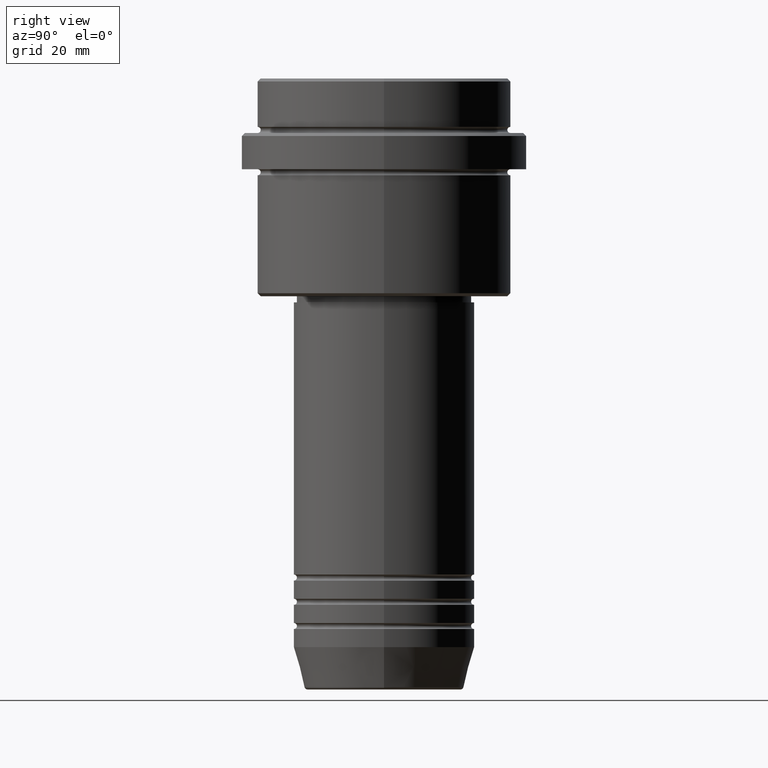
[diagram: clean part render]
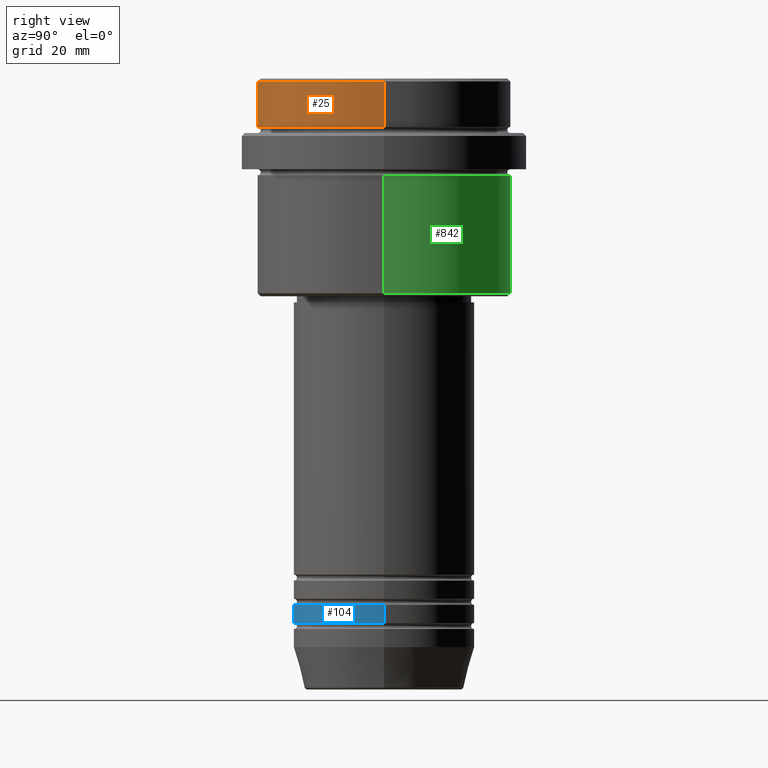
[diagram: same view with three faces highlighted in distinct colors, each labeled with its STEP entity id]
A machine part, right view with three faces highlighted in distinct colors.
Their STEP definitions:

[orange] entity #25 — the highlighted cylindrical surface (partial cylindrical patch) has radius 21 mm, axis along (-0, -0, 1).
#25 = ADVANCED_FACE ( 'NONE', ( #569 ), #991, .T. ) ;
#26 = CARTESIAN_POINT ( 'NONE',  ( 0.000000000000000000, 0.000000000000000000, 0.000000000000000000 ) ) ;
#95 = EDGE_CURVE ( 'NONE', #551, #1072, #917, .T. ) ;
#270 = DIRECTION ( 'NONE',  ( 1.000000000000000000, 0.000000000000000000, 0.000000000000000000 ) ) ;
#284 = LINE ( 'NONE', #712, #1170 ) ;
#298 = CARTESIAN_POINT ( 'NONE',  ( -21.00000000000000000, 2.571758278209441661E-15, -7.999999999999998224 ) ) ;
#355 = VERTEX_POINT ( 'NONE', #298 ) ;
#381 = CARTESIAN_POINT ( 'NONE',  ( 21.00000000000000000, 0.000000000000000000, 0.000000000000000000 ) ) ;
#387 = CARTESIAN_POINT ( 'NONE',  ( 21.00000000000000000, 0.000000000000000000, -0.5000000000000247580 ) ) ;
#399 = VERTEX_POINT ( 'NONE', #877 ) ;
#473 = DIRECTION ( 'NONE',  ( -0.000000000000000000, -0.000000000000000000, 1.000000000000000000 ) ) ;
#492 = DIRECTION ( 'NONE',  ( 0.000000000000000000, 0.000000000000000000, -1.000000000000000000 ) ) ;
#521 = AXIS2_PLACEMENT_3D ( 'NONE', #1125, #473, #998 ) ;
#532 = LINE ( 'NONE', #381, #1108 ) ;
#551 = VERTEX_POINT ( 'NONE', #387 ) ;
#567 = EDGE_CURVE ( 'NONE', #399, #551, #532, .T. ) ;
#569 = FACE_OUTER_BOUND ( 'NONE', #1161, .T. ) ;
#586 = ORIENTED_EDGE ( 'NONE', *, *, #699, .F. ) ;
#679 = DIRECTION ( 'NONE',  ( -0.000000000000000000, -0.000000000000000000, 1.000000000000000000 ) ) ;
#699 = EDGE_CURVE ( 'NONE', #355, #1072, #284, .T. ) ;
#702 = DIRECTION ( 'NONE',  ( 1.000000000000000000, 0.000000000000000000, 0.000000000000000000 ) ) ;
#712 = CARTESIAN_POINT ( 'NONE',  ( -21.00000000000000000, 2.571758278209441661E-15, 0.000000000000000000 ) ) ;
#731 = ORIENTED_EDGE ( 'NONE', *, *, #95, .T. ) ;
#745 = AXIS2_PLACEMENT_3D ( 'NONE', #26, #679, #702 ) ;
#747 = DIRECTION ( 'NONE',  ( -0.000000000000000000, -0.000000000000000000, 1.000000000000000000 ) ) ;
#791 = ORIENTED_EDGE ( 'NONE', *, *, #800, .T. ) ;
#800 = EDGE_CURVE ( 'NONE', #355, #399, #916, .T. ) ;
#869 = ORIENTED_EDGE ( 'NONE', *, *, #567, .T. ) ;
#877 = CARTESIAN_POINT ( 'NONE',  ( 21.00000000000000000, 0.000000000000000000, -7.999999999999998224 ) ) ;
#916 = CIRCLE ( 'NONE', #521, 21.00000000000000000 ) ;
#917 = CIRCLE ( 'NONE', #1110, 21.00000000000000000 ) ;
#991 = CYLINDRICAL_SURFACE ( 'NONE', #745, 21.00000000000000000 ) ;
#998 = DIRECTION ( 'NONE',  ( 1.000000000000000000, 0.000000000000000000, 0.000000000000000000 ) ) ;
#1072 = VERTEX_POINT ( 'NONE', #1127 ) ;
#1108 = VECTOR ( 'NONE', #1280, 1000.000000000000000 ) ;
#1110 = AXIS2_PLACEMENT_3D ( 'NONE', #1230, #492, #270 ) ;
#1125 = CARTESIAN_POINT ( 'NONE',  ( 0.000000000000000000, 0.000000000000000000, -7.999999999999998224 ) ) ;
#1127 = CARTESIAN_POINT ( 'NONE',  ( -21.00000000000000000, 2.571758278209441661E-15, -0.5000000000000247580 ) ) ;
#1161 = EDGE_LOOP ( 'NONE', ( #586, #791, #869, #731 ) ) ;
#1170 = VECTOR ( 'NONE', #747, 1000.000000000000000 ) ;
#1230 = CARTESIAN_POINT ( 'NONE',  ( 0.000000000000000000, 0.000000000000000000, -0.5000000000000247580 ) ) ;
#1280 = DIRECTION ( 'NONE',  ( -0.000000000000000000, -0.000000000000000000, 1.000000000000000000 ) ) ;

[blue] entity #104 — the highlighted cylindrical surface (partial cylindrical patch) has radius 15 mm, axis along (-0, -0, 1).
#50 = VECTOR ( 'NONE', #1311, 1000.000000000000000 ) ;
#60 = DIRECTION ( 'NONE',  ( -0.000000000000000000, -0.000000000000000000, 1.000000000000000000 ) ) ;
#104 = ADVANCED_FACE ( 'NONE', ( #1257 ), #1027, .T. ) ;
#128 = ORIENTED_EDGE ( 'NONE', *, *, #374, .T. ) ;
#129 = VERTEX_POINT ( 'NONE', #291 ) ;
#186 = VERTEX_POINT ( 'NONE', #309 ) ;
#235 = LINE ( 'NONE', #557, #50 ) ;
#246 = CIRCLE ( 'NONE', #1028, 15.00000000000000000 ) ;
#261 = EDGE_LOOP ( 'NONE', ( #530, #128, #320, #1396 ) ) ;
#275 = DIRECTION ( 'NONE',  ( -0.000000000000000000, -0.000000000000000000, 1.000000000000000000 ) ) ;
#291 = CARTESIAN_POINT ( 'NONE',  ( 15.00000000000000000, 0.000000000000000000, -89.99999999999988631 ) ) ;
#309 = CARTESIAN_POINT ( 'NONE',  ( -15.00000000000000000, 1.836970198721029589E-15, -86.99999999999988631 ) ) ;
#320 = ORIENTED_EDGE ( 'NONE', *, *, #1060, .T. ) ;
#374 = EDGE_CURVE ( 'NONE', #389, #129, #246, .T. ) ;
#378 = DIRECTION ( 'NONE',  ( 1.000000000000000000, 0.000000000000000000, 0.000000000000000000 ) ) ;
#389 = VERTEX_POINT ( 'NONE', #771 ) ;
#420 = CIRCLE ( 'NONE', #658, 15.00000000000000000 ) ;
#530 = ORIENTED_EDGE ( 'NONE', *, *, #1090, .F. ) ;
#546 = AXIS2_PLACEMENT_3D ( 'NONE', #1378, #60, #378 ) ;
#557 = CARTESIAN_POINT ( 'NONE',  ( 15.00000000000000000, 0.000000000000000000, 0.000000000000000000 ) ) ;
#603 = DIRECTION ( 'NONE',  ( 1.000000000000000000, 0.000000000000000000, 0.000000000000000000 ) ) ;
#658 = AXIS2_PLACEMENT_3D ( 'NONE', #792, #904, #780 ) ;
#771 = CARTESIAN_POINT ( 'NONE',  ( -15.00000000000000000, 1.836970198721029589E-15, -89.99999999999988631 ) ) ;
#780 = DIRECTION ( 'NONE',  ( 1.000000000000000000, 0.000000000000000000, 0.000000000000000000 ) ) ;
#792 = CARTESIAN_POINT ( 'NONE',  ( 0.000000000000000000, 0.000000000000000000, -86.99999999999988631 ) ) ;
#811 = CARTESIAN_POINT ( 'NONE',  ( 0.000000000000000000, 0.000000000000000000, -89.99999999999988631 ) ) ;
#865 = VECTOR ( 'NONE', #1120, 1000.000000000000000 ) ;
#904 = DIRECTION ( 'NONE',  ( -0.000000000000000000, -0.000000000000000000, 1.000000000000000000 ) ) ;
#951 = CARTESIAN_POINT ( 'NONE',  ( 15.00000000000000000, 0.000000000000000000, -86.99999999999988631 ) ) ;
#956 = VERTEX_POINT ( 'NONE', #951 ) ;
#1005 = EDGE_CURVE ( 'NONE', #186, #956, #420, .T. ) ;
#1010 = LINE ( 'NONE', #1102, #865 ) ;
#1027 = CYLINDRICAL_SURFACE ( 'NONE', #546, 15.00000000000000000 ) ;
#1028 = AXIS2_PLACEMENT_3D ( 'NONE', #811, #275, #603 ) ;
#1060 = EDGE_CURVE ( 'NONE', #129, #956, #235, .T. ) ;
#1090 = EDGE_CURVE ( 'NONE', #389, #186, #1010, .T. ) ;
#1102 = CARTESIAN_POINT ( 'NONE',  ( -15.00000000000000000, 1.836970198721029589E-15, 0.000000000000000000 ) ) ;
#1120 = DIRECTION ( 'NONE',  ( -0.000000000000000000, -0.000000000000000000, 1.000000000000000000 ) ) ;
#1257 = FACE_OUTER_BOUND ( 'NONE', #261, .T. ) ;
#1311 = DIRECTION ( 'NONE',  ( -0.000000000000000000, -0.000000000000000000, 1.000000000000000000 ) ) ;
#1378 = CARTESIAN_POINT ( 'NONE',  ( 0.000000000000000000, 0.000000000000000000, 0.000000000000000000 ) ) ;
#1396 = ORIENTED_EDGE ( 'NONE', *, *, #1005, .F. ) ;

[green] entity #842 — the highlighted cylindrical surface (partial cylindrical patch) has radius 21 mm, axis along (-0, -0, 1).
#17 = DIRECTION ( 'NONE',  ( -0.000000000000000000, -0.000000000000000000, 1.000000000000000000 ) ) ;
#100 = VECTOR ( 'NONE', #833, 1000.000000000000000 ) ;
#147 = CIRCLE ( 'NONE', #336, 21.00000000000000000 ) ;
#192 = ORIENTED_EDGE ( 'NONE', *, *, #380, .F. ) ;
#269 = DIRECTION ( 'NONE',  ( -0.000000000000000000, -0.000000000000000000, 1.000000000000000000 ) ) ;
#318 = ORIENTED_EDGE ( 'NONE', *, *, #902, .T. ) ;
#327 = VERTEX_POINT ( 'NONE', #1235 ) ;
#336 = AXIS2_PLACEMENT_3D ( 'NONE', #924, #1360, #845 ) ;
#380 = EDGE_CURVE ( 'NONE', #544, #627, #147, .T. ) ;
#386 = ORIENTED_EDGE ( 'NONE', *, *, #1225, .F. ) ;
#398 = CARTESIAN_POINT ( 'NONE',  ( -21.00000000000000000, 2.571758278209441661E-15, -16.00000000000000355 ) ) ;
#507 = LINE ( 'NONE', #1384, #100 ) ;
#544 = VERTEX_POINT ( 'NONE', #1129 ) ;
#566 = AXIS2_PLACEMENT_3D ( 'NONE', #676, #1007, #1113 ) ;
#596 = VECTOR ( 'NONE', #269, 1000.000000000000000 ) ;
#627 = VERTEX_POINT ( 'NONE', #398 ) ;
#676 = CARTESIAN_POINT ( 'NONE',  ( 0.000000000000000000, 0.000000000000000000, 0.000000000000000000 ) ) ;
#727 = CARTESIAN_POINT ( 'NONE',  ( 21.00000000000000000, 0.000000000000000000, -35.50000000000001421 ) ) ;
#808 = FACE_OUTER_BOUND ( 'NONE', #1359, .T. ) ;
#833 = DIRECTION ( 'NONE',  ( -0.000000000000000000, -0.000000000000000000, 1.000000000000000000 ) ) ;
#842 = ADVANCED_FACE ( 'NONE', ( #808 ), #1131, .T. ) ;
#845 = DIRECTION ( 'NONE',  ( 1.000000000000000000, 0.000000000000000000, 0.000000000000000000 ) ) ;
#870 = LINE ( 'NONE', #1340, #596 ) ;
#902 = EDGE_CURVE ( 'NONE', #1216, #327, #1122, .T. ) ;
#924 = CARTESIAN_POINT ( 'NONE',  ( 0.000000000000000000, 0.000000000000000000, -16.00000000000000355 ) ) ;
#955 = ORIENTED_EDGE ( 'NONE', *, *, #1157, .T. ) ;
#1007 = DIRECTION ( 'NONE',  ( -0.000000000000000000, -0.000000000000000000, 1.000000000000000000 ) ) ;
#1099 = DIRECTION ( 'NONE',  ( -1.000000000000000000, 0.000000000000000000, 0.000000000000000000 ) ) ;
#1113 = DIRECTION ( 'NONE',  ( 1.000000000000000000, 0.000000000000000000, 0.000000000000000000 ) ) ;
#1122 = CIRCLE ( 'NONE', #1354, 21.00000000000000000 ) ;
#1129 = CARTESIAN_POINT ( 'NONE',  ( 21.00000000000000000, 0.000000000000000000, -16.00000000000000355 ) ) ;
#1131 = CYLINDRICAL_SURFACE ( 'NONE', #566, 21.00000000000000000 ) ;
#1157 = EDGE_CURVE ( 'NONE', #327, #627, #870, .T. ) ;
#1216 = VERTEX_POINT ( 'NONE', #727 ) ;
#1225 = EDGE_CURVE ( 'NONE', #1216, #544, #507, .T. ) ;
#1235 = CARTESIAN_POINT ( 'NONE',  ( -21.00000000000000000, 2.571758278209441661E-15, -35.50000000000001421 ) ) ;
#1307 = CARTESIAN_POINT ( 'NONE',  ( 0.000000000000000000, 0.000000000000000000, -35.50000000000001421 ) ) ;
#1340 = CARTESIAN_POINT ( 'NONE',  ( -21.00000000000000000, 2.571758278209441661E-15, 0.000000000000000000 ) ) ;
#1354 = AXIS2_PLACEMENT_3D ( 'NONE', #1307, #17, #1099 ) ;
#1359 = EDGE_LOOP ( 'NONE', ( #318, #955, #192, #386 ) ) ;
#1360 = DIRECTION ( 'NONE',  ( -0.000000000000000000, -0.000000000000000000, 1.000000000000000000 ) ) ;
#1384 = CARTESIAN_POINT ( 'NONE',  ( 21.00000000000000000, 0.000000000000000000, 0.000000000000000000 ) ) ;